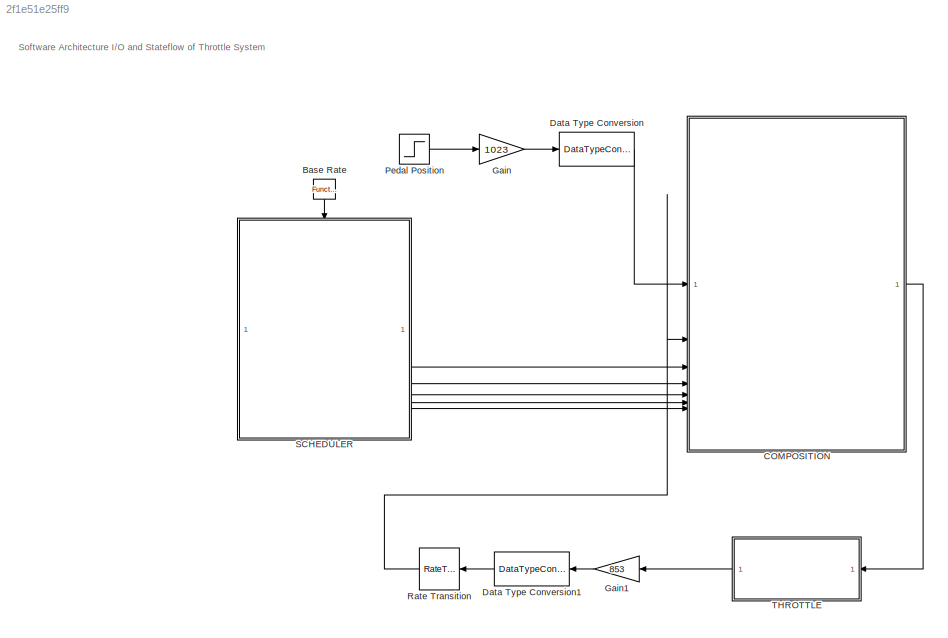
MODEL slx_2f1e51e25ff9
KIND model
CONFIG AbsTol = auto
CONFIG EnableMultiTasking = off
CONFIG FixedStep = auto
CONFIG MaxStep = auto
CONFIG MinStep = auto
CONFIG PreLoadFcn = J = 0.22619921148445760000;\nc = 8.89069171842483820000;\nk = 19.15595408068224300000;\ninput_delay = 0.00986306560803374390;\n\nKt = 174.53000000000000000000;\nangle_init = 15.00000000000000000000;\nangle_open = 90.00000000000000000000;\nTs = 0.005;
CONFIG RelTol = 1e-3
CONFIG SampleTimeConstraint = Unconstrained
CONFIG SolverName = VariableStepAuto
CONFIG StartTime = 0.0
CONFIG StopTime = 4
BLOCK [Reference] Base Rate  REF=simulink/Ports &
Subsystems/Function-Call
Generator
  NameLocation = right
  SourceBlock = simulink/Ports &\nSubsystems/Function-Call\nGenerator
  SourceType = Function-Call Generator
BLOCK [ModelReference] COMPOSITION
  ModelNameDialog = Composition
  ModelReferenceVersion = 5.7
  ScheduleRates = on
BLOCK [DataTypeConversion] Data Type Conversion
  RndMeth = Floor
  SaturateOnIntegerOverflow = off
BLOCK [DataTypeConversion] Data Type Conversion1
  OutDataTypeStr = uint16
  RndMeth = Floor
  SaturateOnIntegerOverflow = off
BLOCK [Gain] Gain
  Gain = 1023
BLOCK [Gain] Gain1
  Gain = 853
BLOCK [Step] Pedal Position
  SampleTime = 0.05
  Time = 0.25
BLOCK [RateTransition] Rate Transition
  NameLocation = top
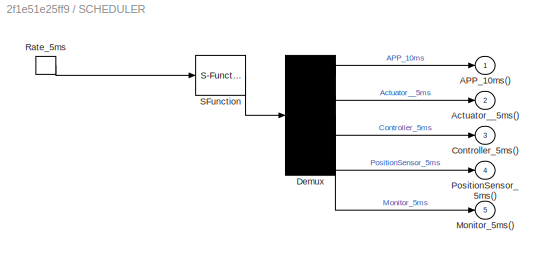
BLOCK [SubSystem] SCHEDULER
  ErrorFcn = Stateflow.Translate.translate
  PermitHierarchicalResolution = ExplicitOnly
  SFBlockType = Chart
  TreatAsAtomicUnit = on
BLOCK [Demux] SCHEDULER/ Demux 
  Outputs = 5
BLOCK [S-Function] SCHEDULER/ SFunction 
  EnableBusSupport = off
  FunctionName = sf_sfun
  PortCounts = [1 1]
  SFcnIsStateOwnerBlock = off
  SFunctionDeploymentMode = off
  Tag = Stateflow S-Function 3
BLOCK [Outport] SCHEDULER/APP_10ms()
BLOCK [Outport] SCHEDULER/Actuator__5ms()
  Port = 2
BLOCK [Outport] SCHEDULER/Controller_5ms()
  Port = 3
BLOCK [Outport] SCHEDULER/Monitor_5ms()
  Port = 5
BLOCK [Outport] SCHEDULER/PositionSensor_5ms()
  Port = 4
BLOCK [TriggerPort] SCHEDULER/Rate_5ms
  ShowOutputPort = on
  StatesWhenEnabling = held
  TriggerType = function-call
  VariantControl = (inherit)
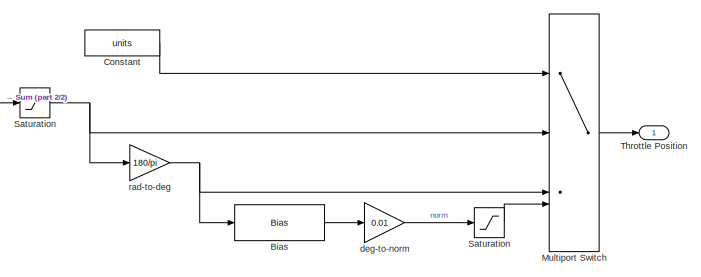
[diagram: THROTTLE - part 1/2, middle right region]
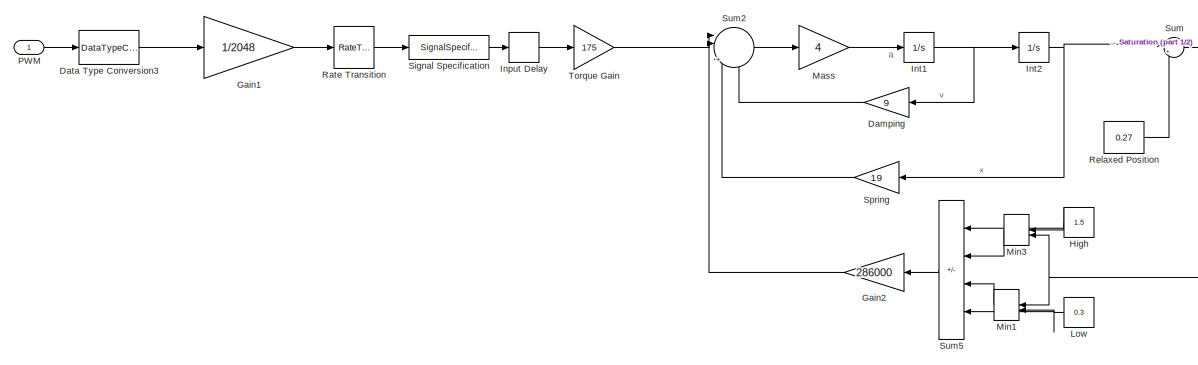
[diagram: THROTTLE - part 2/2, left side, full height]
BLOCK [SubSystem] THROTTLE
BLOCK [Bias] THROTTLE/Bias
  Bias = -15
  SaturateOnIntegerOverflow = off
BLOCK [Constant] THROTTLE/Constant
  Value = units
BLOCK [Gain] THROTTLE/Damping
  Gain = 9
  OutDataTypeStr = Inherit: Same as input
  ParamDataTypeStr = Inherit: Same as input
  SaturateOnIntegerOverflow = on
BLOCK [DataTypeConversion] THROTTLE/Data Type Conversion3
  OutDataTypeStr = double
  RndMeth = Floor
  SaturateOnIntegerOverflow = off
BLOCK [Gain] THROTTLE/Gain1
  Gain = 1/2048
  NameLocation = top
BLOCK [Gain] THROTTLE/Gain2
  Gain = 286000
  NameLocation = top
  OutDataTypeStr = Inherit: Same as input
  ParamDataTypeStr = Inherit: Same as input
  SaturateOnIntegerOverflow = on
BLOCK [Constant] THROTTLE/High
  Value = 1.5
BLOCK [TransportDelay] THROTTLE/Input Delay
  DelayTime = 0.01
  FixedBuffer = on
BLOCK [Integrator] THROTTLE/Int1
BLOCK [Integrator] THROTTLE/Int2
BLOCK [Constant] THROTTLE/Low
  NameLocation = top
  Value = 0.3
BLOCK [Gain] THROTTLE/Mass
  Gain = 4
  OutDataTypeStr = Inherit: Same as input
  ParamDataTypeStr = Inherit: Same as input
  SaturateOnIntegerOverflow = on
BLOCK [MinMax] THROTTLE/Min1
  InputSameDT = on
  Inputs = 2
  SaturateOnIntegerOverflow = on
BLOCK [MinMax] THROTTLE/Min3
  Function = max
  InputSameDT = on
  Inputs = 2
  SaturateOnIntegerOverflow = on
BLOCK [MultiPortSwitch] THROTTLE/Multiport Switch
  InputSameDT = off
  SaturateOnIntegerOverflow = off
BLOCK [Inport] THROTTLE/PWM
BLOCK [RateTransition] THROTTLE/Rate Transition
BLOCK [Constant] THROTTLE/Relaxed Position
  Value = 0.27
BLOCK [Saturate] THROTTLE/Saturation
  LowerLimit = 0.0
  UpperLimit = pi/2
BLOCK [Saturate] THROTTLE/Saturation 
  LowerLimit = 0.0
  UpperLimit = 1.0
BLOCK [SignalSpecification] THROTTLE/Signal Specification
  SampleTime = 0
BLOCK [Gain] THROTTLE/Spring
  Gain = 19
  OutDataTypeStr = Inherit: Same as input
  ParamDataTypeStr = Inherit: Same as input
  SaturateOnIntegerOverflow = on
BLOCK [Sum] THROTTLE/Sum
  InputSameDT = on
  Inputs = |++
  OutDataTypeStr = Inherit: Same as first input
  SaturateOnIntegerOverflow = on
BLOCK [Sum] THROTTLE/Sum2
  InputSameDT = on
  Inputs = |||+---
  OutDataTypeStr = Inherit: Same as first input
  SaturateOnIntegerOverflow = on
BLOCK [Sum] THROTTLE/Sum5
  IconShape = rectangular
  InputSameDT = on
  Inputs = -+||+-
  OutDataTypeStr = Inherit: Same as first input
  SaturateOnIntegerOverflow = on
BLOCK [Outport] THROTTLE/Throttle Position
  VectorParamsAs1DForOutWhenUnconnected = off
BLOCK [Gain] THROTTLE/Torque Gain
  Gain = 175
  OutDataTypeStr = Inherit: Same as input
  ParamDataTypeStr = Inherit: Same as input
  SaturateOnIntegerOverflow = on
BLOCK [Gain] THROTTLE/deg-to-norm
  AttributesFormatString = %<Gain>
  Gain = 0.01
BLOCK [Gain] THROTTLE/rad-to-deg
  Gain = 180/pi
ANNOTATION (root): Software Architecture I/O and Stateflow of Throttle System
ANNOTATION THROTTLE: a
LINE Base Rate:1 -> SCHEDULER:trigger
LINE COMPOSITION:1 -> THROTTLE:1
LINE Data Type Conversion1:1 -> Rate Transition:1
LINE Data Type Conversion:1 -> COMPOSITION:1
LINE Gain1:1 -> Data Type Conversion1:1
LINE Gain:1 -> Data Type Conversion:1
LINE Pedal Position:1 -> Gain:1
LINE Rate Transition:1 -> COMPOSITION:2
LINE SCHEDULER:1 -> COMPOSITION:3
LINE SCHEDULER:2 -> COMPOSITION:4
LINE SCHEDULER:3 -> COMPOSITION:5
LINE SCHEDULER:4 -> COMPOSITION:6
LINE SCHEDULER:5 -> COMPOSITION:7
LINE THROTTLE/Bias:1 -> THROTTLE/deg-to-norm:1
LINE THROTTLE/Constant:1 -> THROTTLE/Multiport Switch:1
LINE THROTTLE/Damping:1 -> THROTTLE/Sum2:4
LINE THROTTLE/Data Type Conversion3:1 -> THROTTLE/Gain1:1
LINE THROTTLE/Gain1:1 -> THROTTLE/Rate Transition:1
LINE THROTTLE/Gain2:1 -> THROTTLE/Sum2:2
NET THROTTLE/High:1 -> THROTTLE/Min3:1, THROTTLE/Sum5:1
LINE THROTTLE/Input Delay:1 -> THROTTLE/Torque Gain:1
NET THROTTLE/Int1:1 -> THROTTLE/Damping:1, THROTTLE/Int2:1
NET THROTTLE/Int2:1 -> THROTTLE/Spring:1, THROTTLE/Sum:1
NET THROTTLE/Low:1 -> THROTTLE/Min1:2, THROTTLE/Sum5:4
LINE THROTTLE/Mass:1 -> THROTTLE/Int1:1
LINE THROTTLE/Min1:1 -> THROTTLE/Sum5:3
LINE THROTTLE/Min3:1 -> THROTTLE/Sum5:2
LINE THROTTLE/Multiport Switch:1 -> THROTTLE/Throttle Position:1
LINE THROTTLE/PWM:1 -> THROTTLE/Data Type Conversion3:1
LINE THROTTLE/Rate Transition:1 -> THROTTLE/Signal Specification:1
LINE THROTTLE/Relaxed Position:1 -> THROTTLE/Sum:2
LINE THROTTLE/Saturation :1 -> THROTTLE/Multiport Switch:4
NET THROTTLE/Saturation:1 -> THROTTLE/Multiport Switch:2, THROTTLE/rad-to-deg:1
LINE THROTTLE/Signal Specification:1 -> THROTTLE/Input Delay:1
LINE THROTTLE/Spring:1 -> THROTTLE/Sum2:3
LINE THROTTLE/Sum2:1 -> THROTTLE/Mass:1
LINE THROTTLE/Sum5:1 -> THROTTLE/Gain2:1
NET THROTTLE/Sum:1 -> THROTTLE/Min1:1, THROTTLE/Min3:2, THROTTLE/Saturation:1
LINE THROTTLE/Torque Gain:1 -> THROTTLE/Sum2:1
LINE THROTTLE/deg-to-norm:1 -> THROTTLE/Saturation :1
NET THROTTLE/rad-to-deg:1 -> THROTTLE/Bias:1, THROTTLE/Multiport Switch:3
LINE THROTTLE:1 -> Gain1:1
note: NET lines group one-source signal fan-out (src -> all destinations, sorted); 1:1 wires keep LINE
CHART SCHEDULER states=1 transitions=1
  STATE_LABEL 'Run\nen:\nTPS_Primary_read_5ms();\nTP_Monitor_select_5ms();\nController_run_5ms();\nActuator_output_5ms();\nAPP_read_10ms();\non every(1, base_rate_5ms):\nTPS_Primary_read_5ms();\nTP_Monitor_select_5ms();\nController_run_5ms();\nActuator_output_5ms();\non every(2, base_rate_5ms):\nAPP_read_10ms();\n'
CHART  states=0 transitions=0
